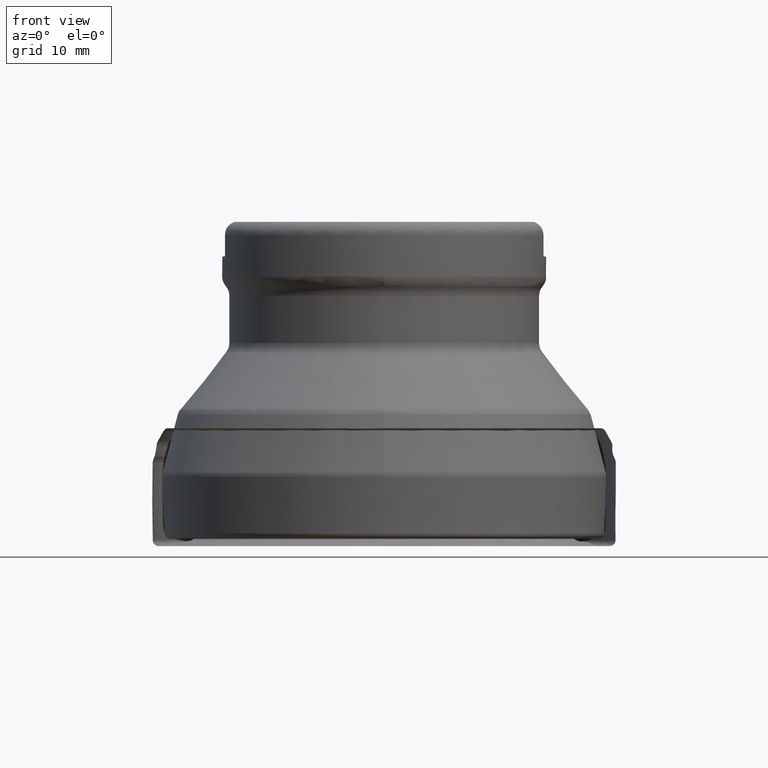
[diagram: clean part render]
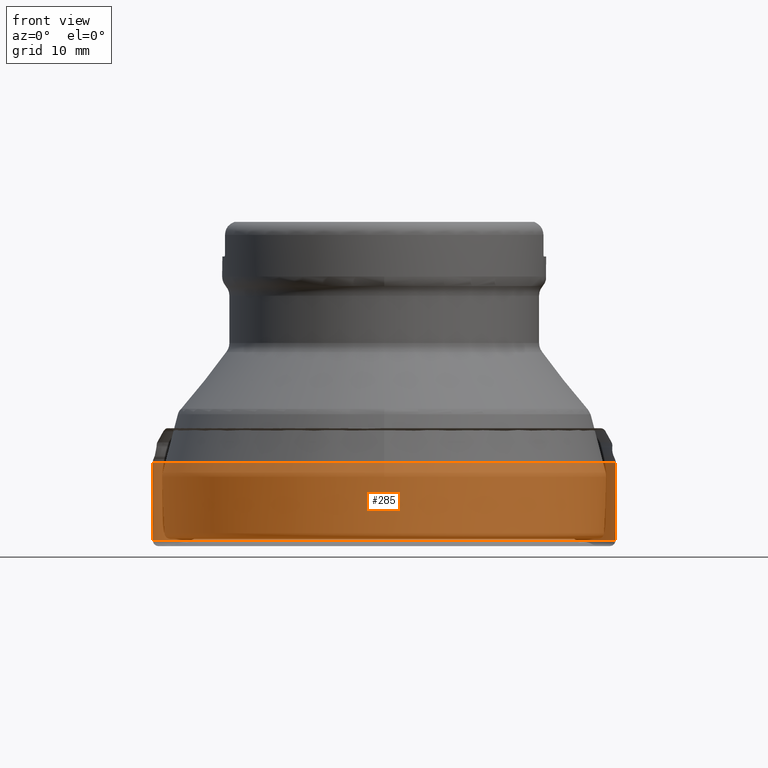
[diagram: same view with one face highlighted and labeled with its STEP entity id]
A machine part, front view. The second image highlights one B-rep face of the part: STEP entity #285.
In plain terms, the highlighted face is a SurfaceOfRevolution surface.
Its self-contained STEP definition (entity closure, byte-faithful):
#118=SURFACE_OF_REVOLUTION('',#1147,#139);
#139=AXIS1_PLACEMENT('',#2405,#1518);
#285=ADVANCED_FACE('',(#446,#447),#118,.F.);
#446=FACE_BOUND('',#570,.T.);
#447=FACE_BOUND('',#571,.T.);
#570=EDGE_LOOP('',(#802));
#571=EDGE_LOOP('',(#803));
#802=ORIENTED_EDGE('',*,*,#1023,.T.);
#803=ORIENTED_EDGE('',*,*,#1024,.F.);
#907=VERTEX_POINT('',#2380);
#908=VERTEX_POINT('',#2390);
#1023=EDGE_CURVE('',#907,#907,#1083,.T.);
#1024=EDGE_CURVE('',#908,#908,#1084,.T.);
#1083=CIRCLE('',#1259,31.75);
#1084=CIRCLE('',#1260,31.7499998882169);
#1147=B_SPLINE_CURVE_WITH_KNOTS('',3,(#2391,#2392,#2393,#2394,#2395,#2396,
#2397,#2398,#2399,#2400,#2401,#2402,#2403,#2404),.UNSPECIFIED.,.F.,.F.,
(4,1,1,1,1,1,1,1,1,1,1,4),(0.,0.033411319286246,0.068579475049133,0.138915786574907,
0.209252098100681,0.244420253863568,0.279588409626454,0.349924721152228,
0.490597344203776,0.631269967255324,0.771942590306871,1.),.UNSPECIFIED.);
#1259=AXIS2_PLACEMENT_3D('',#2379,#1513,#1514);
#1260=AXIS2_PLACEMENT_3D('',#2389,#1516,#1517);
#1513=DIRECTION('',(0.,1.17145536458252E-15,1.));
#1514=DIRECTION('',(0.,-1.,1.14737615733899E-15));
#1516=DIRECTION('',(0.,1.17145536458252E-15,1.));
#1517=DIRECTION('',(0.,-1.,1.17127983140731E-15));
#1518=DIRECTION('',(0.,1.17145536458252E-15,1.));
#2379=CARTESIAN_POINT('',(0.,1.33709491502019E-14,11.4139638218029));
#2380=CARTESIAN_POINT('',(0.,-31.75,11.4139638218029));
#2389=CARTESIAN_POINT('',(0.,8.95063197905407E-16,0.764060863918946));
#2390=CARTESIAN_POINT('',(0.,-31.7499998882169,0.764060863918983));
#2391=CARTESIAN_POINT('',(31.5682735094231,-3.39213909417854,0.76406080394523));
#2392=CARTESIAN_POINT('',(31.5726745370818,-3.3751221316417,0.885093946361776));
#2393=CARTESIAN_POINT('',(31.5815724765512,-3.34017698963559,1.13352681941723));
#2394=CARTESIAN_POINT('',(31.5990440159897,-3.26921260998491,1.63677103621378));
#2395=CARTESIAN_POINT('',(31.6210208239415,-3.15963940717563,2.27077549276803));
#2396=CARTESIAN_POINT('',(31.642308614329,-3.02531578269732,2.90005528767142));
#2397=CARTESIAN_POINT('',(31.6586239643851,-2.90395005536698,3.40024674568422));
#2398=CARTESIAN_POINT('',(31.6744094926464,-2.77125054051462,3.89755576877995));
#2399=CARTESIAN_POINT('',(31.6995780914246,-2.53779053252746,4.76755607675229));
#2400=CARTESIAN_POINT('',(31.7284928037906,-2.20480602010957,6.01076189203839));
#2401=CARTESIAN_POINT('',(31.7511986259071,-1.8050139758896,7.50278582651174));
#2402=CARTESIAN_POINT('',(31.7623316434385,-1.3223540300318,9.30389857501189));
#2403=CARTESIAN_POINT('',(31.7532430659541,-0.973051752853793,10.6076775655488));
#2404=CARTESIAN_POINT('',(31.7409733521333,-0.757040724903346,11.4139638218029));
#2405=CARTESIAN_POINT('',(0.,0.,0.));